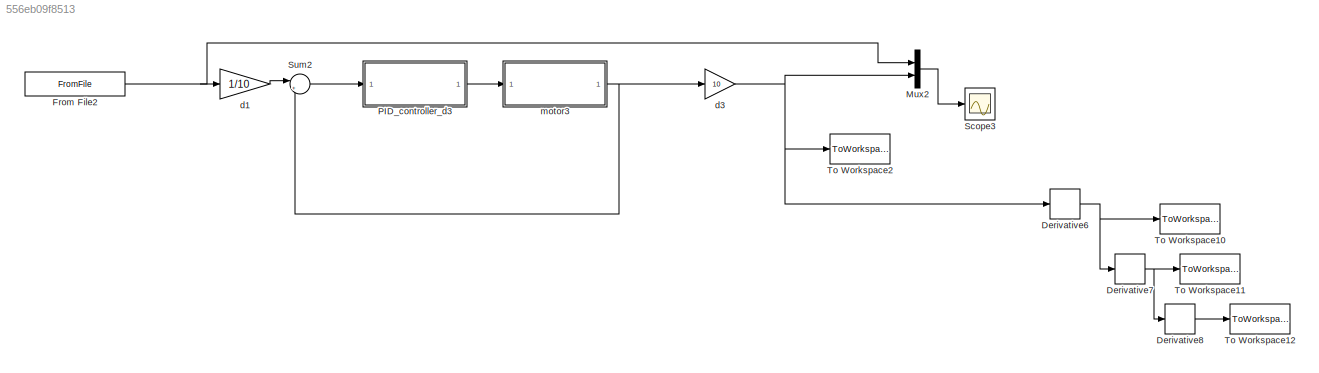
MODEL slx_556eb09f8513
KIND model
CONFIG AbsTol = auto
CONFIG EnableMultiTasking = off
CONFIG FixedStep = NaN
CONFIG MaxStep = auto
CONFIG MinStep = auto
CONFIG RelTol = 1e-3
CONFIG SampleTimeConstraint = Unconstrained
CONFIG SolverName = ode5
CONFIG StartTime = 0.0
CONFIG StopTime = 2
BLOCK [Derivative] Derivative6
BLOCK [Derivative] Derivative7
BLOCK [Derivative] Derivative8
BLOCK [FromFile] From File2
  FileName = d3set.mat
BLOCK [Mux] Mux2
  DisplayOption = bar
  Inputs = 2
  Ports = [2, 1]
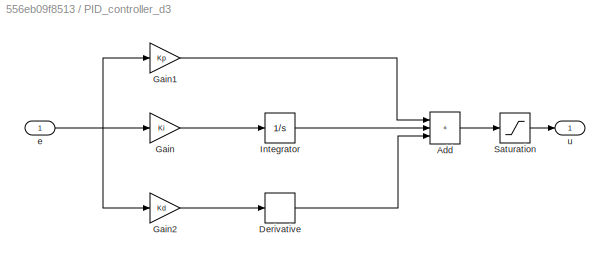
BLOCK [SubSystem] PID_controller_d3
  Ports = [1, 1]
  RequestExecContextInheritance = off
BLOCK [Sum] PID_controller_d3/Add
  IconShape = rectangular
  Inputs = +++
  Ports = [3, 1]
BLOCK [Derivative] PID_controller_d3/Derivative
BLOCK [Gain] PID_controller_d3/Gain
  Gain = Ki
BLOCK [Gain] PID_controller_d3/Gain1
  Gain = Kp
BLOCK [Gain] PID_controller_d3/Gain2
  Gain = Kd
BLOCK [Integrator] PID_controller_d3/Integrator
  Ports = [1, 1]
BLOCK [Saturate] PID_controller_d3/Saturation
  LowerLimit = -300
  UpperLimit = 300
BLOCK [Inport] PID_controller_d3/e
BLOCK [Outport] PID_controller_d3/u
  VectorParamsAs1DForOutWhenUnconnected = off
BLOCK [Scope] Scope3
  Floating = off
  NumInputPorts = 1
  Ports = [1]
  ScopeSpecificationString = Simulink.scopes.TimeScopeBlockCfg('CurrentConfiguration', extmgr.ConfigurationSet(extmgr.Configuration('Core','General UI',true),extmgr.Configuration('Core','Source UI',true),extmgr.Configuration('Sources','WiredSimulink',true,'DataLoggingVariableName','ScopeData3'),extmgr.Configuration('Visuals','Time Domain',true,'SerializedDisplays',{struct('MinYLimReal','-1.37269','MaxYLimReal','12.35423','YLa...<+1456ch>
BLOCK [Sum] Sum2
  Inputs = |+-
  Ports = [2, 1]
BLOCK [ToWorkspace] To Workspace10
  FixptAsFi = on
  MaxDataPoints = inf
  Ports = [1]
  SampleTime = -1
  VariableName = v_d3out
BLOCK [ToWorkspace] To Workspace11
  FixptAsFi = on
  MaxDataPoints = inf
  Ports = [1]
  SampleTime = -1
  VariableName = a_d3out
BLOCK [ToWorkspace] To Workspace12
  FixptAsFi = on
  MaxDataPoints = inf
  Ports = [1]
  SampleTime = -1
  VariableName = j_d3out
BLOCK [ToWorkspace] To Workspace2
  FixptAsFi = on
  MaxDataPoints = inf
  Ports = [1]
  SampleTime = -1
  VariableName = q_d3out
BLOCK [Gain] d1
  Gain = 1/10
BLOCK [Gain] d3
  Gain = 10
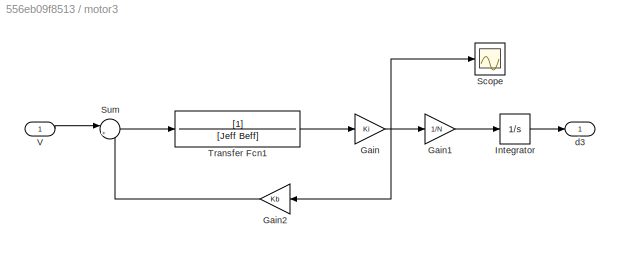
BLOCK [SubSystem] motor3
  Ports = [1, 1]
  RequestExecContextInheritance = off
BLOCK [Gain] motor3/Gain
  Gain = Ki
BLOCK [Gain] motor3/Gain1
  Gain = 1/N
BLOCK [Gain] motor3/Gain2
  Gain = Kb
BLOCK [Integrator] motor3/Integrator
  Ports = [1, 1]
BLOCK [Scope] motor3/Scope
  Floating = off
  NumInputPorts = 1
  Ports = [1]
  ScopeSpecificationString = Simulink.scopes.TimeScopeBlockCfg('CurrentConfiguration', extmgr.ConfigurationSet(extmgr.Configuration('Core','General UI',true),extmgr.Configuration('Core','Source UI',true),extmgr.Configuration('Sources','WiredSimulink',true,'DataLoggingVariableName','ScopeData2'),extmgr.Configuration('Visuals','Time Domain',true,'SerializedDisplays',{struct('MinYLimReal','-12.50988','MaxYLimReal','112.58894','Y...<+1373ch>
BLOCK [Sum] motor3/Sum
  Inputs = |+-
  Ports = [2, 1]
BLOCK [TransferFcn] motor3/Transfer Fcn1
  Denominator = [Jeff Beff]
BLOCK [Inport] motor3/V
BLOCK [Outport] motor3/d3
  VectorParamsAs1DForOutWhenUnconnected = off
NET Derivative6:1 -> Derivative7:1, To Workspace10:1
NET Derivative7:1 -> Derivative8:1, To Workspace11:1
LINE Derivative8:1 -> To Workspace12:1
NET From File2:1 -> Mux2:1, d1:1
LINE Mux2:1 -> Scope3:1
LINE PID_controller_d3/Add:1 -> PID_controller_d3/Saturation:1
LINE PID_controller_d3/Derivative:1 -> PID_controller_d3/Add:3
LINE PID_controller_d3/Gain1:1 -> PID_controller_d3/Add:1
LINE PID_controller_d3/Gain2:1 -> PID_controller_d3/Derivative:1
LINE PID_controller_d3/Gain:1 -> PID_controller_d3/Integrator:1
LINE PID_controller_d3/Integrator:1 -> PID_controller_d3/Add:2
LINE PID_controller_d3/Saturation:1 -> PID_controller_d3/u:1
NET PID_controller_d3/e:1 -> PID_controller_d3/Gain1:1, PID_controller_d3/Gain2:1, PID_controller_d3/Gain:1
LINE PID_controller_d3:1 -> motor3:1
LINE Sum2:1 -> PID_controller_d3:1
LINE d1:1 -> Sum2:1
NET d3:1 -> Derivative6:1, Mux2:2, To Workspace2:1
LINE motor3/Gain1:1 -> motor3/Integrator:1
LINE motor3/Gain2:1 -> motor3/Sum:2
NET motor3/Gain:1 -> motor3/Gain1:1, motor3/Gain2:1, motor3/Scope:1
LINE motor3/Integrator:1 -> motor3/d3:1
LINE motor3/Sum:1 -> motor3/Transfer Fcn1:1
LINE motor3/Transfer Fcn1:1 -> motor3/Gain:1
LINE motor3/V:1 -> motor3/Sum:1
NET motor3:1 -> Sum2:2, d3:1
note: NET lines group one-source signal fan-out (src -> all destinations, sorted); 1:1 wires keep LINE
